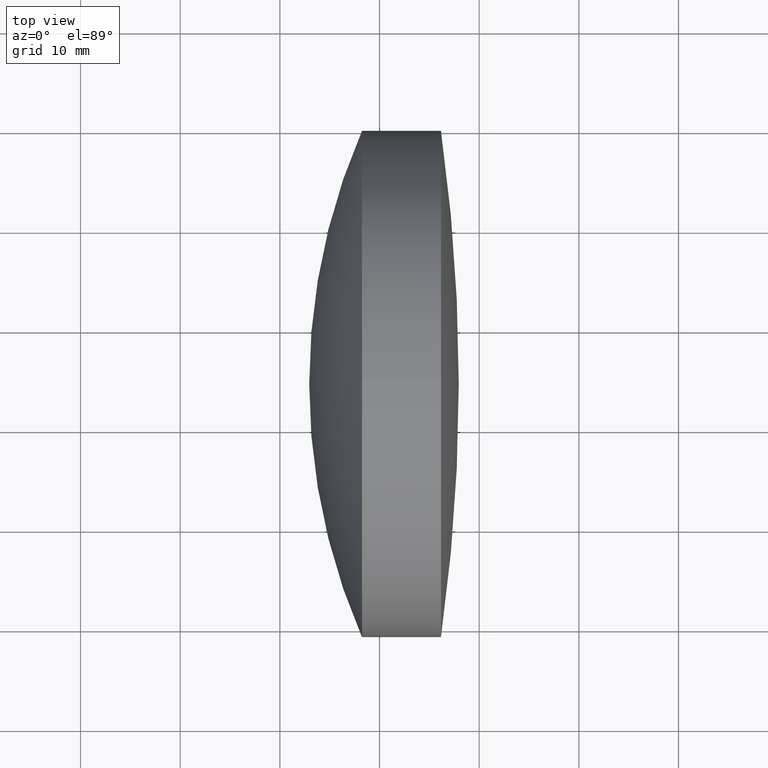
[diagram: clean part render]
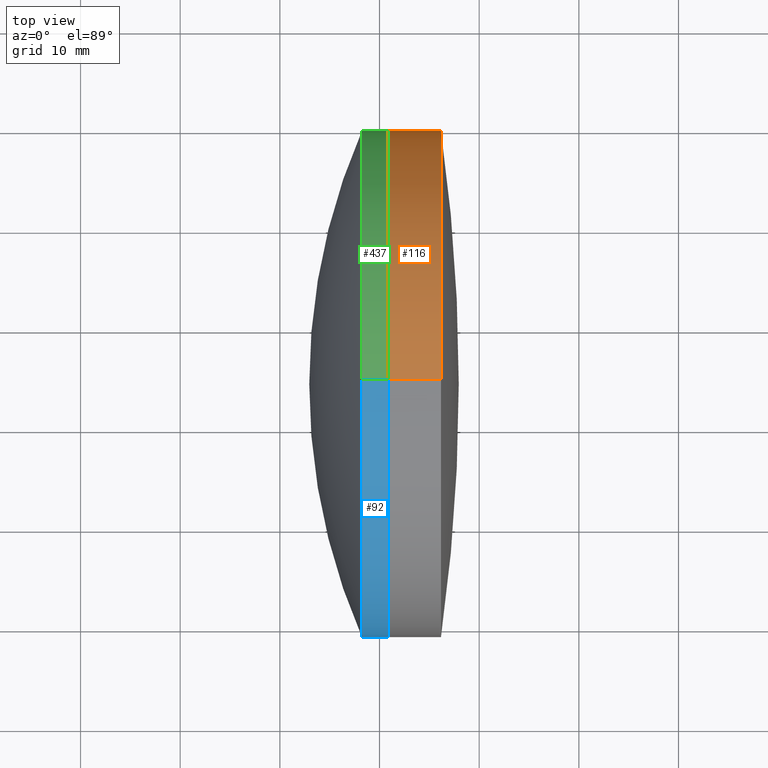
[diagram: same view with three faces highlighted in distinct colors, each labeled with its STEP entity id]
A machine part, top view with three faces highlighted in distinct colors.
Their STEP definitions:

[orange] entity #116 — the highlighted cylindrical surface (partial cylindrical patch) has radius 25.4 mm, axis along (-1, -0, -0).
#4 = VERTEX_POINT ( 'NONE', #59 ) ;
#13 = AXIS2_PLACEMENT_3D ( 'NONE', #87, #358, #400 ) ;
#15 = ORIENTED_EDGE ( 'NONE', *, *, #24, .F. ) ;
#16 = EDGE_CURVE ( 'NONE', #182, #4, #229, .T. ) ;
#17 = CARTESIAN_POINT ( 'NONE',  ( -79.15676304157061338, 64.41514532454267794, -25.39999999999999858 ) ) ;
#20 = CARTESIAN_POINT ( 'NONE',  ( -75.05097348642850363, 64.41514532454267794, 25.39999999999999858 ) ) ;
#23 = DIRECTION ( 'NONE',  ( 0.000000000000000000, 0.000000000000000000, 1.000000000000000000 ) ) ;
#24 = EDGE_CURVE ( 'NONE', #115, #222, #114, .T. ) ;
#25 = CIRCLE ( 'NONE', #315, 25.39999999999999858 ) ;
#41 = EDGE_LOOP ( 'NONE', ( #382, #314, #15, #184, #208, #146 ) ) ;
#47 = AXIS2_PLACEMENT_3D ( 'NONE', #161, #189, #403 ) ;
#49 = DIRECTION ( 'NONE',  ( 0.000000000000000000, 0.000000000000000000, 1.000000000000000000 ) ) ;
#59 = CARTESIAN_POINT ( 'NONE',  ( -79.15676304157061338, 64.41514532454267794, 25.39999999999999858 ) ) ;
#60 = CARTESIAN_POINT ( 'NONE',  ( -73.83507646784927658, 89.81514532454266941, 0.000000000000000000 ) ) ;
#71 = EDGE_CURVE ( 'NONE', #244, #222, #327, .T. ) ;
#87 = CARTESIAN_POINT ( 'NONE',  ( -79.15676304157061338, 64.41514532454267794, 0.000000000000000000 ) ) ;
#112 = CIRCLE ( 'NONE', #47, 25.39999999999999858 ) ;
#114 = CIRCLE ( 'NONE', #171, 25.39999999999999858 ) ;
#115 = VERTEX_POINT ( 'NONE', #196 ) ;
#116 = ADVANCED_FACE ( 'NONE', ( #369 ), #125, .T. ) ;
#124 = DIRECTION ( 'NONE',  ( -1.000000000000000000, -0.000000000000000000, -0.000000000000000000 ) ) ;
#125 = CYLINDRICAL_SURFACE ( 'NONE', #447, 25.39999999999999858 ) ;
#130 = DIRECTION ( 'NONE',  ( -1.000000000000000000, -0.000000000000000000, -0.000000000000000000 ) ) ;
#146 = ORIENTED_EDGE ( 'NONE', *, *, #150, .T. ) ;
#150 = EDGE_CURVE ( 'NONE', #182, #312, #112, .T. ) ;
#152 = CIRCLE ( 'NONE', #13, 25.39999999999999858 ) ;
#161 = CARTESIAN_POINT ( 'NONE',  ( -73.83507646784929079, 64.41514532454267794, 0.000000000000000000 ) ) ;
#171 = AXIS2_PLACEMENT_3D ( 'NONE', #199, #297, #262 ) ;
#182 = VERTEX_POINT ( 'NONE', #435 ) ;
#184 = ORIENTED_EDGE ( 'NONE', *, *, #231, .F. ) ;
#189 = DIRECTION ( 'NONE',  ( -1.000000000000000000, -0.000000000000000000, -0.000000000000000000 ) ) ;
#196 = CARTESIAN_POINT ( 'NONE',  ( -79.15676304157061338, 89.81514532454271205, 0.000000000000000000 ) ) ;
#197 = VECTOR ( 'NONE', #130, 1000.000000000000000 ) ;
#199 = CARTESIAN_POINT ( 'NONE',  ( -79.15676304157061338, 64.41514532454267794, 0.000000000000000000 ) ) ;
#208 = ORIENTED_EDGE ( 'NONE', *, *, #16, .F. ) ;
#220 = CARTESIAN_POINT ( 'NONE',  ( -73.83507646784929079, 64.41514532454267794, 0.000000000000000000 ) ) ;
#222 = VERTEX_POINT ( 'NONE', #17 ) ;
#225 = DIRECTION ( 'NONE',  ( -1.000000000000000000, -0.000000000000000000, -0.000000000000000000 ) ) ;
#229 = LINE ( 'NONE', #20, #422 ) ;
#231 = EDGE_CURVE ( 'NONE', #4, #115, #152, .T. ) ;
#244 = VERTEX_POINT ( 'NONE', #324 ) ;
#262 = DIRECTION ( 'NONE',  ( 0.000000000000000000, 0.000000000000000000, 1.000000000000000000 ) ) ;
#266 = CARTESIAN_POINT ( 'NONE',  ( -75.05097348642850363, 64.41514532454267794, -25.39999999999999858 ) ) ;
#287 = EDGE_CURVE ( 'NONE', #312, #244, #25, .T. ) ;
#297 = DIRECTION ( 'NONE',  ( -1.000000000000000000, -0.000000000000000000, -0.000000000000000000 ) ) ;
#312 = VERTEX_POINT ( 'NONE', #60 ) ;
#314 = ORIENTED_EDGE ( 'NONE', *, *, #71, .T. ) ;
#315 = AXIS2_PLACEMENT_3D ( 'NONE', #220, #225, #49 ) ;
#324 = CARTESIAN_POINT ( 'NONE',  ( -73.83507646784929079, 64.41514532454267794, -25.39999999999999858 ) ) ;
#327 = LINE ( 'NONE', #266, #197 ) ;
#332 = CARTESIAN_POINT ( 'NONE',  ( -75.05097348642850363, 64.41514532454267794, 0.000000000000000000 ) ) ;
#358 = DIRECTION ( 'NONE',  ( -1.000000000000000000, -0.000000000000000000, -0.000000000000000000 ) ) ;
#369 = FACE_OUTER_BOUND ( 'NONE', #41, .T. ) ;
#382 = ORIENTED_EDGE ( 'NONE', *, *, #287, .T. ) ;
#400 = DIRECTION ( 'NONE',  ( 0.000000000000000000, 0.000000000000000000, 1.000000000000000000 ) ) ;
#401 = DIRECTION ( 'NONE',  ( -1.000000000000000000, -0.000000000000000000, -0.000000000000000000 ) ) ;
#403 = DIRECTION ( 'NONE',  ( 0.000000000000000000, 0.000000000000000000, 1.000000000000000000 ) ) ;
#422 = VECTOR ( 'NONE', #124, 1000.000000000000000 ) ;
#435 = CARTESIAN_POINT ( 'NONE',  ( -73.83507646784929079, 64.41514532454267794, 25.39999999999999858 ) ) ;
#447 = AXIS2_PLACEMENT_3D ( 'NONE', #332, #401, #23 ) ;

[blue] entity #92 — the highlighted cylindrical surface (partial cylindrical patch) has radius 25.4 mm, axis along (-1, -0, -0).
#22 = CIRCLE ( 'NONE', #395, 25.39999999999999858 ) ;
#26 = ORIENTED_EDGE ( 'NONE', *, *, #138, .T. ) ;
#43 = DIRECTION ( 'NONE',  ( 0.000000000000000000, 0.000000000000000000, 1.000000000000000000 ) ) ;
#45 = DIRECTION ( 'NONE',  ( 0.000000000000000000, 0.000000000000000000, 1.000000000000000000 ) ) ;
#52 = DIRECTION ( 'NONE',  ( -1.000000000000000000, -0.000000000000000000, -0.000000000000000000 ) ) ;
#58 = AXIS2_PLACEMENT_3D ( 'NONE', #399, #323, #363 ) ;
#62 = CARTESIAN_POINT ( 'NONE',  ( -79.15676304157061338, 64.41514532454267794, 0.000000000000000000 ) ) ;
#75 = AXIS2_PLACEMENT_3D ( 'NONE', #62, #269, #45 ) ;
#78 = ORIENTED_EDGE ( 'NONE', *, *, #80, .T. ) ;
#79 = DIRECTION ( 'NONE',  ( -1.000000000000000000, -0.000000000000000000, -0.000000000000000000 ) ) ;
#80 = EDGE_CURVE ( 'NONE', #376, #190, #162, .T. ) ;
#85 = EDGE_CURVE ( 'NONE', #210, #190, #22, .T. ) ;
#88 = CARTESIAN_POINT ( 'NONE',  ( -81.76059203481264603, 64.41514532454267794, 0.000000000000000000 ) ) ;
#91 = CARTESIAN_POINT ( 'NONE',  ( -79.15676304157061338, 64.41514532454267794, -25.39999999999999858 ) ) ;
#92 = ADVANCED_FACE ( 'NONE', ( #433 ), #354, .T. ) ;
#117 = VERTEX_POINT ( 'NONE', #91 ) ;
#121 = CARTESIAN_POINT ( 'NONE',  ( -87.05097348642850363, 64.41514532454267794, -25.39999999999999858 ) ) ;
#135 = CARTESIAN_POINT ( 'NONE',  ( -81.76059203481264603, 64.41514532454267794, 0.000000000000000000 ) ) ;
#138 = EDGE_CURVE ( 'NONE', #284, #376, #209, .T. ) ;
#141 = VECTOR ( 'NONE', #79, 1000.000000000000000 ) ;
#151 = CARTESIAN_POINT ( 'NONE',  ( -79.15676304157061338, 39.01514532454265805, -3.110602869834279232E-15 ) ) ;
#160 = DIRECTION ( 'NONE',  ( -1.000000000000000000, -0.000000000000000000, -0.000000000000000000 ) ) ;
#162 = LINE ( 'NONE', #193, #141 ) ;
#165 = DIRECTION ( 'NONE',  ( 0.000000000000000000, 0.000000000000000000, 1.000000000000000000 ) ) ;
#169 = VECTOR ( 'NONE', #52, 1000.000000000000000 ) ;
#180 = CIRCLE ( 'NONE', #396, 25.39999999999999858 ) ;
#190 = VERTEX_POINT ( 'NONE', #194 ) ;
#193 = CARTESIAN_POINT ( 'NONE',  ( -87.05097348642850363, 64.41514532454267794, 25.39999999999999858 ) ) ;
#194 = CARTESIAN_POINT ( 'NONE',  ( -81.76059203481264603, 64.41514532454267794, 25.39999999999999858 ) ) ;
#198 = DIRECTION ( 'NONE',  ( -1.000000000000000000, -0.000000000000000000, -0.000000000000000000 ) ) ;
#206 = ORIENTED_EDGE ( 'NONE', *, *, #445, .T. ) ;
#209 = CIRCLE ( 'NONE', #75, 25.39999999999999858 ) ;
#210 = VERTEX_POINT ( 'NONE', #293 ) ;
#211 = EDGE_CURVE ( 'NONE', #117, #276, #331, .T. ) ;
#269 = DIRECTION ( 'NONE',  ( -1.000000000000000000, -0.000000000000000000, -0.000000000000000000 ) ) ;
#276 = VERTEX_POINT ( 'NONE', #296 ) ;
#277 = ORIENTED_EDGE ( 'NONE', *, *, #211, .F. ) ;
#278 = AXIS2_PLACEMENT_3D ( 'NONE', #135, #198, #165 ) ;
#280 = ORIENTED_EDGE ( 'NONE', *, *, #367, .F. ) ;
#284 = VERTEX_POINT ( 'NONE', #151 ) ;
#285 = DIRECTION ( 'NONE',  ( -1.000000000000000000, -0.000000000000000000, -0.000000000000000000 ) ) ;
#293 = CARTESIAN_POINT ( 'NONE',  ( -81.76059203481264603, 39.01514532454267226, -3.110602869834276865E-15 ) ) ;
#296 = CARTESIAN_POINT ( 'NONE',  ( -81.76059203481264603, 64.41514532454267794, -25.39999999999999858 ) ) ;
#318 = CARTESIAN_POINT ( 'NONE',  ( -79.15676304157061338, 64.41514532454267794, 0.000000000000000000 ) ) ;
#323 = DIRECTION ( 'NONE',  ( -1.000000000000000000, -0.000000000000000000, -0.000000000000000000 ) ) ;
#331 = LINE ( 'NONE', #121, #169 ) ;
#335 = CIRCLE ( 'NONE', #278, 25.39999999999999858 ) ;
#341 = ORIENTED_EDGE ( 'NONE', *, *, #85, .F. ) ;
#354 = CYLINDRICAL_SURFACE ( 'NONE', #58, 25.39999999999999858 ) ;
#363 = DIRECTION ( 'NONE',  ( 0.000000000000000000, 0.000000000000000000, 1.000000000000000000 ) ) ;
#367 = EDGE_CURVE ( 'NONE', #276, #210, #335, .T. ) ;
#376 = VERTEX_POINT ( 'NONE', #381 ) ;
#381 = CARTESIAN_POINT ( 'NONE',  ( -79.15676304157061338, 64.41514532454267794, 25.39999999999999858 ) ) ;
#395 = AXIS2_PLACEMENT_3D ( 'NONE', #88, #160, #43 ) ;
#396 = AXIS2_PLACEMENT_3D ( 'NONE', #318, #285, #417 ) ;
#399 = CARTESIAN_POINT ( 'NONE',  ( -87.05097348642850363, 64.41514532454267794, 0.000000000000000000 ) ) ;
#415 = EDGE_LOOP ( 'NONE', ( #277, #206, #26, #78, #341, #280 ) ) ;
#417 = DIRECTION ( 'NONE',  ( 0.000000000000000000, 0.000000000000000000, 1.000000000000000000 ) ) ;
#433 = FACE_OUTER_BOUND ( 'NONE', #415, .T. ) ;
#445 = EDGE_CURVE ( 'NONE', #117, #284, #180, .T. ) ;

[green] entity #437 — the highlighted cylindrical surface (partial cylindrical patch) has radius 25.4 mm, axis along (-1, -0, -0).
#2 = CIRCLE ( 'NONE', #357, 25.39999999999999858 ) ;
#6 = CARTESIAN_POINT ( 'NONE',  ( -87.05097348642850363, 64.41514532454267794, 0.000000000000000000 ) ) ;
#14 = DIRECTION ( 'NONE',  ( -1.000000000000000000, -0.000000000000000000, -0.000000000000000000 ) ) ;
#19 = CARTESIAN_POINT ( 'NONE',  ( -81.76059203481264603, 64.41514532454267794, 0.000000000000000000 ) ) ;
#35 = DIRECTION ( 'NONE',  ( -1.000000000000000000, -0.000000000000000000, -0.000000000000000000 ) ) ;
#38 = AXIS2_PLACEMENT_3D ( 'NONE', #6, #35, #177 ) ;
#52 = DIRECTION ( 'NONE',  ( -1.000000000000000000, -0.000000000000000000, -0.000000000000000000 ) ) ;
#53 = ORIENTED_EDGE ( 'NONE', *, *, #168, .F. ) ;
#73 = ORIENTED_EDGE ( 'NONE', *, *, #159, .T. ) ;
#79 = DIRECTION ( 'NONE',  ( -1.000000000000000000, -0.000000000000000000, -0.000000000000000000 ) ) ;
#80 = EDGE_CURVE ( 'NONE', #376, #190, #162, .T. ) ;
#89 = AXIS2_PLACEMENT_3D ( 'NONE', #428, #255, #360 ) ;
#91 = CARTESIAN_POINT ( 'NONE',  ( -79.15676304157061338, 64.41514532454267794, -25.39999999999999858 ) ) ;
#97 = CIRCLE ( 'NONE', #344, 25.39999999999999858 ) ;
#117 = VERTEX_POINT ( 'NONE', #91 ) ;
#121 = CARTESIAN_POINT ( 'NONE',  ( -87.05097348642850363, 64.41514532454267794, -25.39999999999999858 ) ) ;
#129 = VERTEX_POINT ( 'NONE', #226 ) ;
#141 = VECTOR ( 'NONE', #79, 1000.000000000000000 ) ;
#149 = CYLINDRICAL_SURFACE ( 'NONE', #38, 25.39999999999999858 ) ;
#153 = DIRECTION ( 'NONE',  ( -1.000000000000000000, -0.000000000000000000, -0.000000000000000000 ) ) ;
#159 = EDGE_CURVE ( 'NONE', #376, #129, #339, .T. ) ;
#162 = LINE ( 'NONE', #193, #141 ) ;
#168 = EDGE_CURVE ( 'NONE', #343, #276, #97, .T. ) ;
#169 = VECTOR ( 'NONE', #52, 1000.000000000000000 ) ;
#177 = DIRECTION ( 'NONE',  ( 0.000000000000000000, 0.000000000000000000, 1.000000000000000000 ) ) ;
#188 = AXIS2_PLACEMENT_3D ( 'NONE', #228, #153, #365 ) ;
#190 = VERTEX_POINT ( 'NONE', #194 ) ;
#193 = CARTESIAN_POINT ( 'NONE',  ( -87.05097348642850363, 64.41514532454267794, 25.39999999999999858 ) ) ;
#194 = CARTESIAN_POINT ( 'NONE',  ( -81.76059203481264603, 64.41514532454267794, 25.39999999999999858 ) ) ;
#211 = EDGE_CURVE ( 'NONE', #117, #276, #331, .T. ) ;
#212 = ORIENTED_EDGE ( 'NONE', *, *, #289, .T. ) ;
#214 = ORIENTED_EDGE ( 'NONE', *, *, #211, .T. ) ;
#226 = CARTESIAN_POINT ( 'NONE',  ( -79.15676304157061338, 89.81514532454271205, 0.000000000000000000 ) ) ;
#228 = CARTESIAN_POINT ( 'NONE',  ( -79.15676304157061338, 64.41514532454267794, 0.000000000000000000 ) ) ;
#252 = FACE_OUTER_BOUND ( 'NONE', #309, .T. ) ;
#255 = DIRECTION ( 'NONE',  ( -1.000000000000000000, -0.000000000000000000, -0.000000000000000000 ) ) ;
#261 = DIRECTION ( 'NONE',  ( 0.000000000000000000, 0.000000000000000000, 1.000000000000000000 ) ) ;
#267 = DIRECTION ( 'NONE',  ( 0.000000000000000000, 0.000000000000000000, 1.000000000000000000 ) ) ;
#273 = EDGE_CURVE ( 'NONE', #190, #343, #281, .T. ) ;
#276 = VERTEX_POINT ( 'NONE', #296 ) ;
#281 = CIRCLE ( 'NONE', #89, 25.39999999999999858 ) ;
#282 = ORIENTED_EDGE ( 'NONE', *, *, #80, .F. ) ;
#288 = CARTESIAN_POINT ( 'NONE',  ( -79.15676304157061338, 64.41514532454267794, 0.000000000000000000 ) ) ;
#289 = EDGE_CURVE ( 'NONE', #129, #117, #2, .T. ) ;
#296 = CARTESIAN_POINT ( 'NONE',  ( -81.76059203481264603, 64.41514532454267794, -25.39999999999999858 ) ) ;
#309 = EDGE_LOOP ( 'NONE', ( #212, #214, #53, #320, #282, #73 ) ) ;
#320 = ORIENTED_EDGE ( 'NONE', *, *, #273, .F. ) ;
#331 = LINE ( 'NONE', #121, #169 ) ;
#339 = CIRCLE ( 'NONE', #188, 25.39999999999999858 ) ;
#343 = VERTEX_POINT ( 'NONE', #405 ) ;
#344 = AXIS2_PLACEMENT_3D ( 'NONE', #19, #14, #261 ) ;
#357 = AXIS2_PLACEMENT_3D ( 'NONE', #288, #444, #267 ) ;
#360 = DIRECTION ( 'NONE',  ( 0.000000000000000000, 0.000000000000000000, 1.000000000000000000 ) ) ;
#365 = DIRECTION ( 'NONE',  ( 0.000000000000000000, 0.000000000000000000, 1.000000000000000000 ) ) ;
#376 = VERTEX_POINT ( 'NONE', #381 ) ;
#381 = CARTESIAN_POINT ( 'NONE',  ( -79.15676304157061338, 64.41514532454267794, 25.39999999999999858 ) ) ;
#405 = CARTESIAN_POINT ( 'NONE',  ( -81.76059203481264603, 89.81514532454268362, 0.000000000000000000 ) ) ;
#428 = CARTESIAN_POINT ( 'NONE',  ( -81.76059203481264603, 64.41514532454267794, 0.000000000000000000 ) ) ;
#437 = ADVANCED_FACE ( 'NONE', ( #252 ), #149, .T. ) ;
#444 = DIRECTION ( 'NONE',  ( -1.000000000000000000, -0.000000000000000000, -0.000000000000000000 ) ) ;